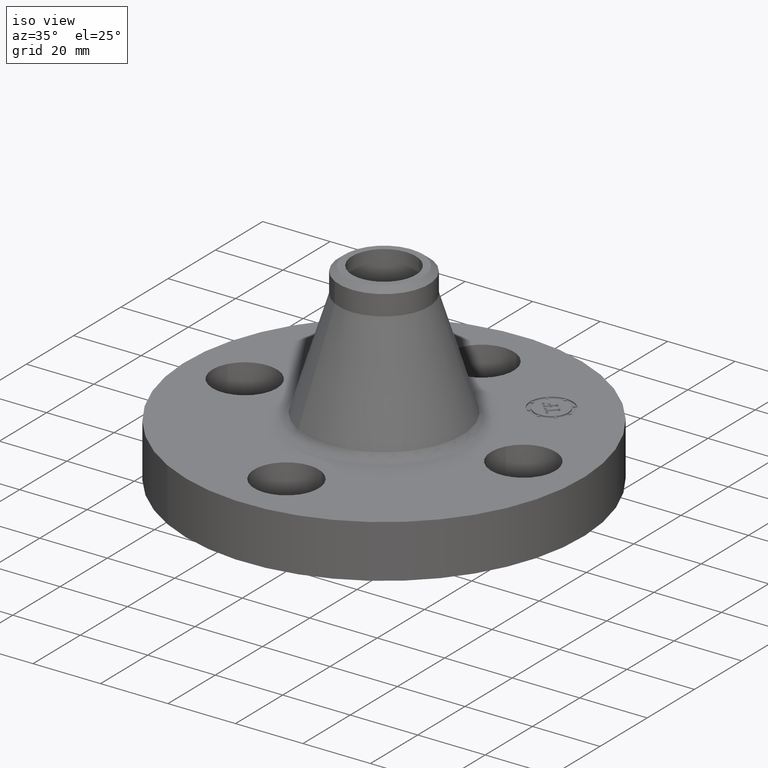
[diagram: clean part render]
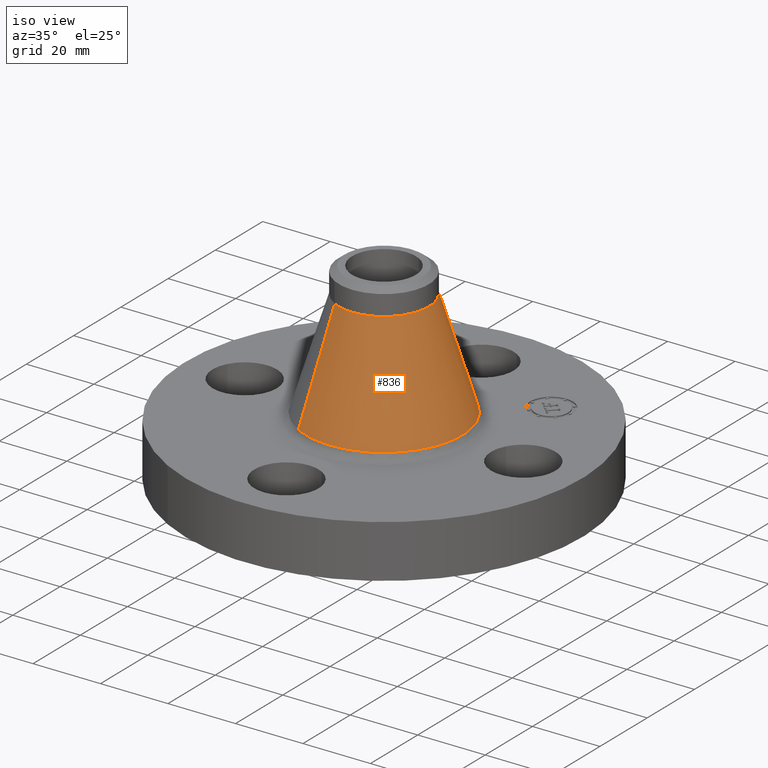
[diagram: same view with one face highlighted and labeled with its STEP entity id]
A machine part, iso view. The second image highlights one B-rep face of the part: STEP entity #836.
In plain terms, the highlighted conical surface has half-angle 17.256 deg.
Its self-contained STEP definition (entity closure, byte-faithful):
#655=AXIS2_PLACEMENT_3D('Circle Axis2P3D',#653,#654,$) ;
#823=AXIS2_PLACEMENT_3D('Cone Axis2P3D',#820,#821,#822) ;
#827=AXIS2_PLACEMENT_3D('Circle Axis2P3D',#825,#826,$) ;
#619=CARTESIAN_POINT('Vertex',(-0.438090692601,-0.801919633801,0.704403161619)) ;
#626=CARTESIAN_POINT('Vertex',(0.438090692601,0.801919633801,0.704403161619)) ;
#653=CARTESIAN_POINT('Axis2P3D Location',(0.,0.,0.704403161619)) ;
#787=CARTESIAN_POINT('Line Origine',(-0.344894550183,-0.631325239395,1.33021689046)) ;
#791=CARTESIAN_POINT('Vertex',(-0.251698407768,-0.460730844994,1.95603061929)) ;
#798=CARTESIAN_POINT('Vertex',(0.251698407768,0.460730844994,1.95603061929)) ;
#801=CARTESIAN_POINT('Line Origine',(0.344894550183,0.631325239395,1.33021689046)) ;
#820=CARTESIAN_POINT('Axis2P3D Location',(0.,0.,1.95603061929)) ;
#825=CARTESIAN_POINT('Axis2P3D Location',(0.,0.,1.95603061929)) ;
#654=DIRECTION('Axis2P3D Direction',(-0.,0.,-0.0393700787402)) ;
#788=DIRECTION('Vector Direction',(-0.00559909232789,-0.0102490697589,-0.0375980030612)) ;
#802=DIRECTION('Vector Direction',(0.00559909232789,0.0102490697589,-0.0375980030612)) ;
#821=DIRECTION('Axis2P3D Direction',(0.,0.,-0.0393700787402)) ;
#822=DIRECTION('Axis2P3D XDirection',(0.0188750212049,0.0345504945626,0.)) ;
#826=DIRECTION('Axis2P3D Direction',(-0.,0.,-0.0393700787402)) ;
#789=VECTOR('Line Direction',#788,0.0393700787402) ;
#803=VECTOR('Line Direction',#802,0.0393700787402) ;
#831=ORIENTED_EDGE('',*,*,#657,.F.) ;
#832=ORIENTED_EDGE('',*,*,#805,.T.) ;
#833=ORIENTED_EDGE('',*,*,#829,.T.) ;
#834=ORIENTED_EDGE('',*,*,#793,.F.) ;
#836=ADVANCED_FACE('PartBody',(#835),#824,.T.) ;
#656=CIRCLE('generated circle',#655,0.913782552919) ;
#828=CIRCLE('generated circle',#827,0.525000000002) ;
#824=CONICAL_SURFACE('Cone',#823,0.525000000002,0.301172693271) ;
#657=EDGE_CURVE('',#627,#620,#656,.T.) ;
#793=EDGE_CURVE('',#620,#792,#790,.F.) ;
#805=EDGE_CURVE('',#627,#799,#804,.F.) ;
#829=EDGE_CURVE('',#799,#792,#828,.T.) ;
#830=EDGE_LOOP('',(#831,#832,#833,#834)) ;
#835=FACE_OUTER_BOUND('',#830,.T.) ;
#790=LINE('Line',#787,#789) ;
#804=LINE('Line',#801,#803) ;
#620=VERTEX_POINT('',#619) ;
#627=VERTEX_POINT('',#626) ;
#792=VERTEX_POINT('',#791) ;
#799=VERTEX_POINT('',#798) ;